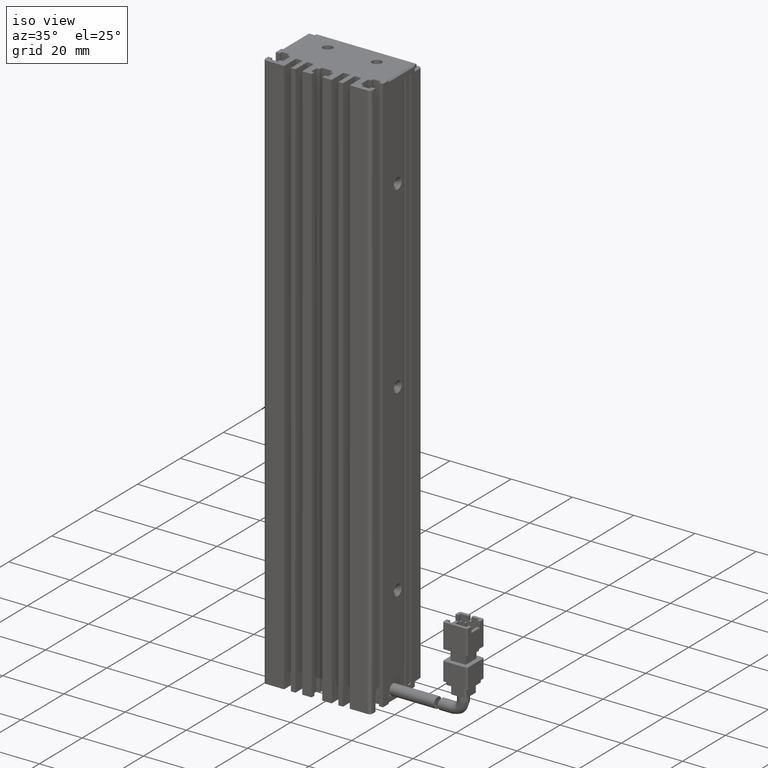
[diagram: clean part render]
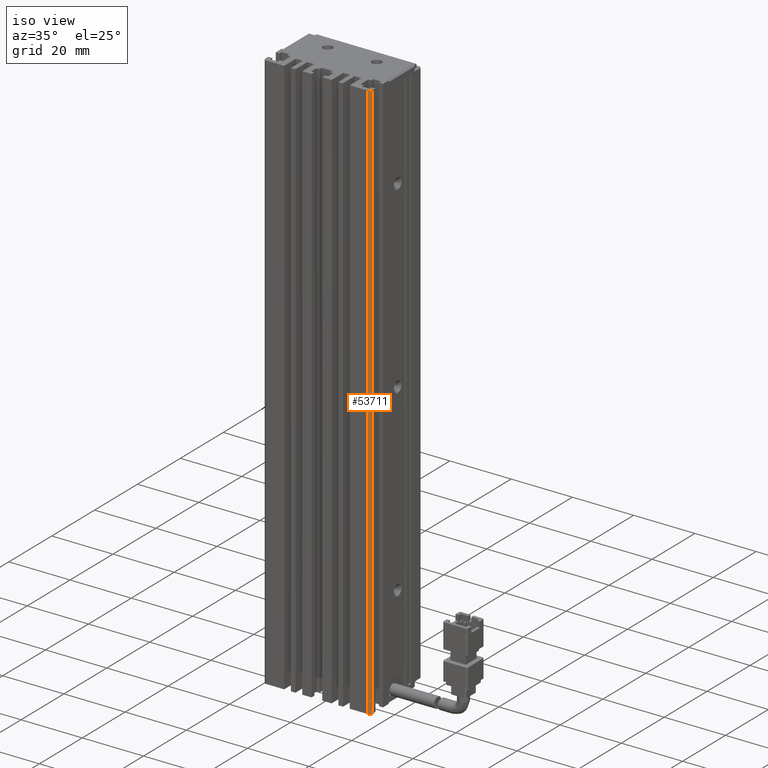
[diagram: same view with one face highlighted and labeled with its STEP entity id]
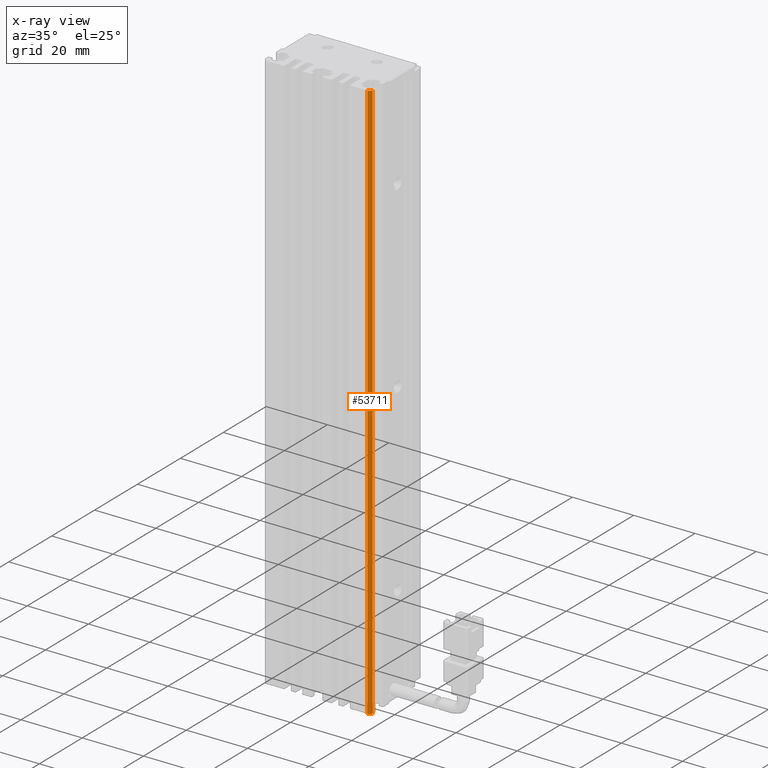
[diagram: x-ray of the same camera — body ghosted, the highlighted face saturated]
A machine part, iso view. The second image highlights one B-rep face of the part: STEP entity #53711.
The next image is the same camera in x-ray: the body ghosted, the highlighted face saturated — about 0% of this face is hidden behind the body in this view.
In plain terms, the highlighted cylindrical surface (edge-blend (fillet) strip) has radius 1 mm, axis along (-0, -0, -1).
Its self-contained STEP definition (entity closure, byte-faithful):
#73 = LINE ( 'NONE', #4574, #38085 ) ;
#256 = DIRECTION ( 'NONE',  ( -0.0000000000000000000, -0.0000000000000000000, -1.000000000000000000 ) ) ;
#1733 = CARTESIAN_POINT ( 'NONE',  ( 57.42537974683542500, 11.99073232304837700, -23.00000000000000700 ) ) ;
#3731 = EDGE_CURVE ( 'NONE', #56332, #9111, #12257, .T. ) ;
#4574 = CARTESIAN_POINT ( 'NONE',  ( 57.42537974683542500, 10.99073232304837500, -23.00000000000000700 ) ) ;
#9111 = VERTEX_POINT ( 'NONE', #38308 ) ;
#11904 = EDGE_CURVE ( 'NONE', #13968, #57172, #35364, .T. ) ;
#12257 = CIRCLE ( 'NONE', #15622, 1.000000000000000900 ) ;
#12438 = CARTESIAN_POINT ( 'NONE',  ( 58.42537974683542500, 11.99073232304837700, -23.00000000000000700 ) ) ;
#12472 = DIRECTION ( 'NONE',  ( -1.000000000000000000, 0.0000000000000000000, 0.0000000000000000000 ) ) ;
#13293 = ORIENTED_EDGE ( 'NONE', *, *, #3731, .T. ) ;
#13968 = VERTEX_POINT ( 'NONE', #77769 ) ;
#13974 = DIRECTION ( 'NONE',  ( -0.0000000000000000000, -0.0000000000000000000, -1.000000000000000000 ) ) ;
#15622 = AXIS2_PLACEMENT_3D ( 'NONE', #30507, #256, #12472 ) ;
#18156 = ORIENTED_EDGE ( 'NONE', *, *, #11904, .T. ) ;
#19113 = AXIS2_PLACEMENT_3D ( 'NONE', #28151, #64627, #34518 ) ;
#27662 = EDGE_CURVE ( 'NONE', #9111, #13968, #73, .T. ) ;
#28151 = CARTESIAN_POINT ( 'NONE',  ( 57.42537974683542500, 11.99073232304837700, -207.0000000000000300 ) ) ;
#28712 = DIRECTION ( 'NONE',  ( -0.0000000000000000000, -0.0000000000000000000, -1.000000000000000000 ) ) ;
#30507 = CARTESIAN_POINT ( 'NONE',  ( 57.42537974683542500, 11.99073232304837700, -23.00000000000000700 ) ) ;
#34456 = EDGE_LOOP ( 'NONE', ( #13293, #40563, #18156, #40895 ) ) ;
#34518 = DIRECTION ( 'NONE',  ( -1.000000000000000000, 0.0000000000000000000, 0.0000000000000000000 ) ) ;
#34952 = EDGE_CURVE ( 'NONE', #57172, #56332, #47570, .T. ) ;
#35364 = CIRCLE ( 'NONE', #19113, 1.000000000000000900 ) ;
#38085 = VECTOR ( 'NONE', #28712, 1000.000000000000000 ) ;
#38308 = CARTESIAN_POINT ( 'NONE',  ( 57.42537974683542500, 10.99073232304837200, -23.00000000000000700 ) ) ;
#40563 = ORIENTED_EDGE ( 'NONE', *, *, #27662, .T. ) ;
#40895 = ORIENTED_EDGE ( 'NONE', *, *, #34952, .T. ) ;
#43269 = CYLINDRICAL_SURFACE ( 'NONE', #69935, 1.000000000000000900 ) ;
#47570 = LINE ( 'NONE', #12438, #62827 ) ;
#48839 = CARTESIAN_POINT ( 'NONE',  ( 58.42537974683542500, 11.99073232304837500, -207.0000000000000300 ) ) ;
#53711 = ADVANCED_FACE ( 'NONE', ( #59491 ), #43269, .T. ) ;
#56332 = VERTEX_POINT ( 'NONE', #73832 ) ;
#57172 = VERTEX_POINT ( 'NONE', #48839 ) ;
#59491 = FACE_OUTER_BOUND ( 'NONE', #34456, .T. ) ;
#62827 = VECTOR ( 'NONE', #73587, 1000.000000000000000 ) ;
#64627 = DIRECTION ( 'NONE',  ( 0.0000000000000000000, 0.0000000000000000000, 1.000000000000000000 ) ) ;
#69935 = AXIS2_PLACEMENT_3D ( 'NONE', #1733, #13974, #75849 ) ;
#73587 = DIRECTION ( 'NONE',  ( 0.0000000000000000000, 0.0000000000000000000, 1.000000000000000000 ) ) ;
#73832 = CARTESIAN_POINT ( 'NONE',  ( 58.42537974683542500, 11.99073232304837500, -23.00000000000000700 ) ) ;
#75849 = DIRECTION ( 'NONE',  ( -1.000000000000000000, 0.0000000000000000000, 0.0000000000000000000 ) ) ;
#77769 = CARTESIAN_POINT ( 'NONE',  ( 57.42537974683542500, 10.99073232304837200, -207.0000000000000300 ) ) ;